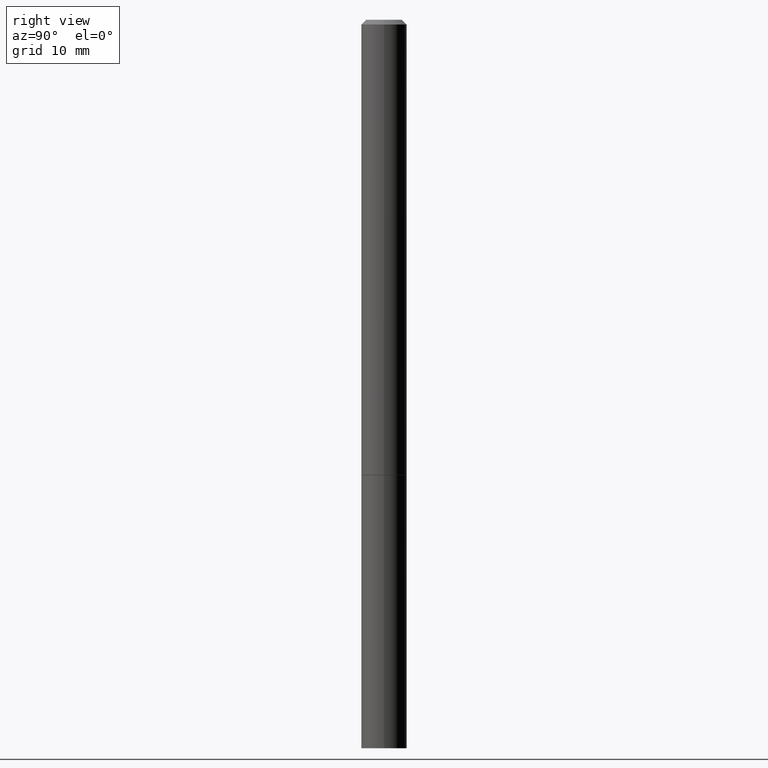
[diagram: clean part render]
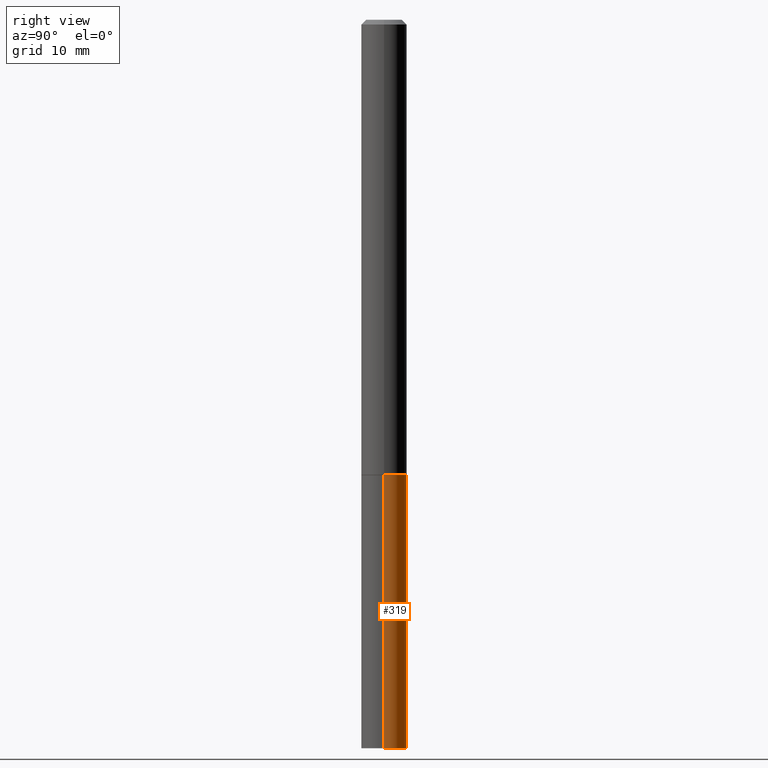
[diagram: same view with one face highlighted and labeled with its STEP entity id]
A machine part, right view. The second image highlights one B-rep face of the part: STEP entity #319.
In plain terms, the highlighted cylindrical surface (edge-blend (fillet) strip) has radius 2.3813 mm, axis along (-0, 0, 1).
Its self-contained STEP definition (entity closure, byte-faithful):
#11 = CARTESIAN_POINT ( 'NONE',  ( 0.09375000000000001388, -7.201180261363985422E-15, -1.875000000000000000 ) ) ;
#26 = LINE ( 'NONE', #110, #206 ) ;
#28 = DIRECTION ( 'NONE',  ( 1.000000000000000000, -6.982962677686265922E-15, 4.876176775795935793E-29 ) ) ;
#33 = VECTOR ( 'NONE', #87, 39.37007874015748143 ) ;
#35 = AXIS2_PLACEMENT_3D ( 'NONE', #224, #231, #28 ) ;
#36 = EDGE_CURVE ( 'NONE', #345, #190, #61, .T. ) ;
#47 = EDGE_LOOP ( 'NONE', ( #156, #279, #97, #211 ) ) ;
#57 = CARTESIAN_POINT ( 'NONE',  ( 0.09375000000000001388, -1.112909676756252465E-14, -3.000000000000000444 ) ) ;
#61 = CIRCLE ( 'NONE', #250, 0.09375000000000001388 ) ;
#81 = CIRCLE ( 'NONE', #151, 0.09375000000000001388 ) ;
#87 = DIRECTION ( 'NONE',  ( -2.445468806185136877E-29, 3.491481338843145188E-15, 1.000000000000000000 ) ) ;
#97 = ORIENTED_EDGE ( 'NONE', *, *, #350, .F. ) ;
#110 = CARTESIAN_POINT ( 'NONE',  ( -0.09375000000000001388, 6.661338147750940229E-16, -4.611501647113973995E-30 ) ) ;
#114 = EDGE_CURVE ( 'NONE', #345, #252, #202, .T. ) ;
#118 = CARTESIAN_POINT ( 'NONE',  ( 0.09375000000000001388, -6.546527510330875041E-16, 4.571415727308690506E-30 ) ) ;
#122 = VERTEX_POINT ( 'NONE', #264 ) ;
#151 = AXIS2_PLACEMENT_3D ( 'NONE', #234, #346, #191 ) ;
#156 = ORIENTED_EDGE ( 'NONE', *, *, #36, .T. ) ;
#190 = VERTEX_POINT ( 'NONE', #195 ) ;
#191 = DIRECTION ( 'NONE',  ( 1.000000000000000000, -6.982962677686261189E-15, 0.000000000000000000 ) ) ;
#193 = DIRECTION ( 'NONE',  ( 1.000000000000000000, -6.982962677686261189E-15, 0.000000000000000000 ) ) ;
#195 = CARTESIAN_POINT ( 'NONE',  ( -0.09375000000000001388, -7.844351948655072817E-15, -3.000000000000000444 ) ) ;
#202 = LINE ( 'NONE', #118, #33 ) ;
#206 = VECTOR ( 'NONE', #253, 39.37007874015748143 ) ;
#211 = ORIENTED_EDGE ( 'NONE', *, *, #114, .F. ) ;
#219 = DIRECTION ( 'NONE',  ( -2.445468806185136597E-29, 3.491481338843145583E-15, 1.000000000000000000 ) ) ;
#224 = CARTESIAN_POINT ( 'NONE',  ( 0.000000000000000000, 0.000000000000000000, 0.000000000000000000 ) ) ;
#231 = DIRECTION ( 'NONE',  ( -2.445468806185136597E-29, 3.491481338843145583E-15, 1.000000000000000000 ) ) ;
#234 = CARTESIAN_POINT ( 'NONE',  ( 4.585254011597131119E-29, -6.546527510330898707E-15, -1.875000000000000000 ) ) ;
#250 = AXIS2_PLACEMENT_3D ( 'NONE', #363, #219, #193 ) ;
#252 = VERTEX_POINT ( 'NONE', #11 ) ;
#253 = DIRECTION ( 'NONE',  ( -2.445468806185136877E-29, 3.491481338843145188E-15, 1.000000000000000000 ) ) ;
#264 = CARTESIAN_POINT ( 'NONE',  ( -0.09375000000000001388, -7.844351948655072817E-15, -1.875000000000000000 ) ) ;
#279 = ORIENTED_EDGE ( 'NONE', *, *, #343, .T. ) ;
#285 = CYLINDRICAL_SURFACE ( 'NONE', #35, 0.09375000000000001388 ) ;
#287 = FACE_OUTER_BOUND ( 'NONE', #47, .T. ) ;
#319 = ADVANCED_FACE ( 'NONE', ( #287 ), #285, .T. ) ;
#343 = EDGE_CURVE ( 'NONE', #190, #122, #26, .T. ) ;
#345 = VERTEX_POINT ( 'NONE', #57 ) ;
#346 = DIRECTION ( 'NONE',  ( -2.445468806185136597E-29, 3.491481338843145583E-15, 1.000000000000000000 ) ) ;
#350 = EDGE_CURVE ( 'NONE', #252, #122, #81, .T. ) ;
#363 = CARTESIAN_POINT ( 'NONE',  ( 7.336406418555409790E-29, -1.047444401652943635E-14, -3.000000000000000444 ) ) ;